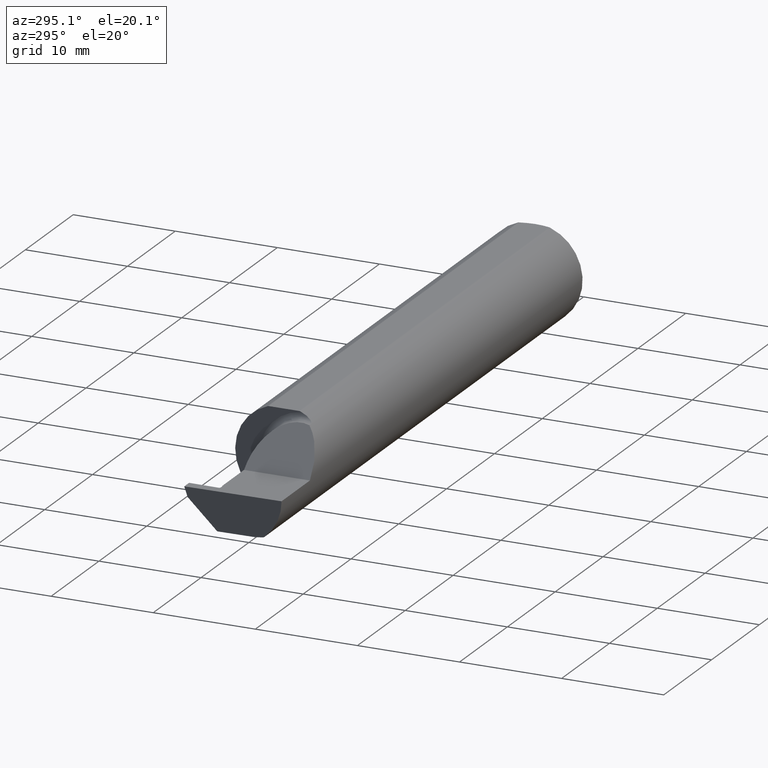
[diagram: clean part render]
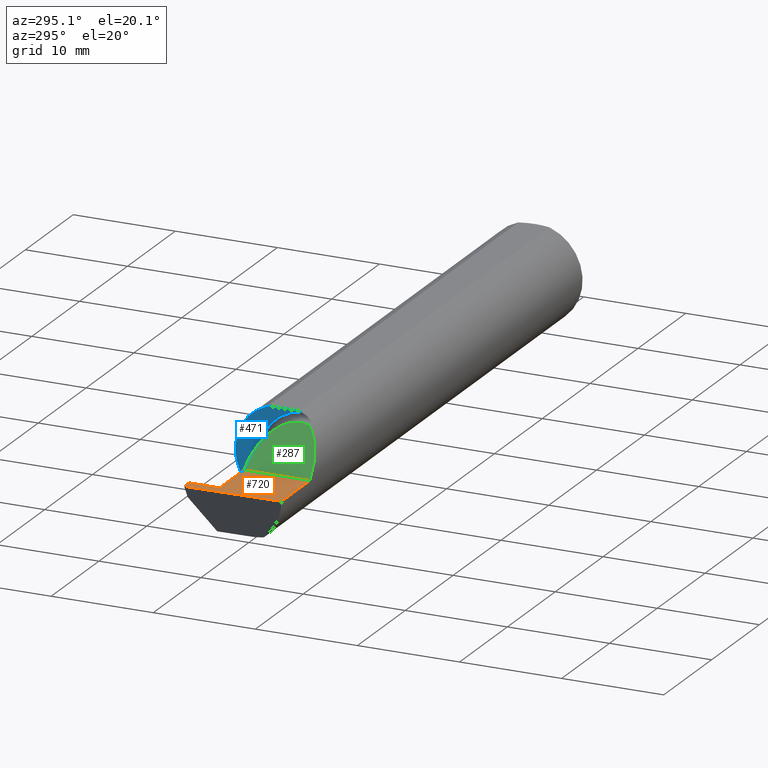
[diagram: same view with three faces highlighted in distinct colors, each labeled with its STEP entity id]
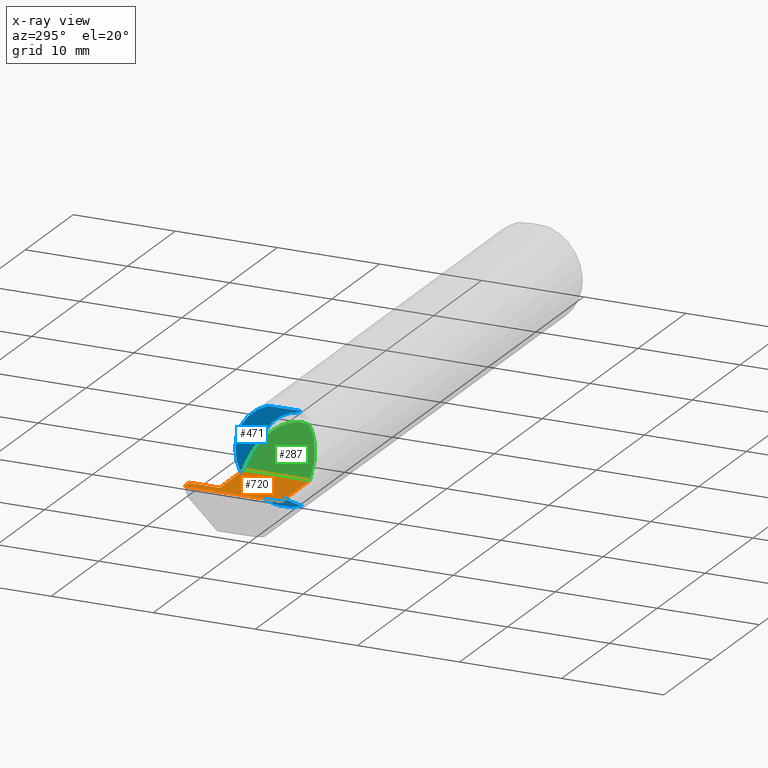
[diagram: x-ray of the same camera — body ghosted, the three highlighted faces saturated]
A machine part, auxiliary view with three faces highlighted in distinct colors.
The next image is the same camera in x-ray (body ghosted, the three faces saturated) — at least one of them is partly hidden behind the body in this view.
Their STEP definitions:

[orange] entity #720 — the highlighted planar face has unit normal (0, 0, -1).
#33 = EDGE_CURVE ( 'NONE', #254, #348, #928, .T. ) ;
#38 = DIRECTION ( 'NONE',  ( 0.01745240643727703073, -0.9998476951563912696, 0.000000000000000000 ) ) ;
#53 = CARTESIAN_POINT ( 'NONE',  ( -2.462042847893961550, 0.06761532263369834928, -4.817540195324741940E-11 ) ) ;
#69 = CARTESIAN_POINT ( 'NONE',  ( -2.459999999986550723, 0.1846500000000000363, -5.335640612625514099E-19 ) ) ;
#79 = CARTESIAN_POINT ( 'NONE',  ( -2.454971356043562647, 0.06464999999999881952, -4.269731417198365675E-11 ) ) ;
#91 = VERTEX_POINT ( 'NONE', #911 ) ;
#93 = CARTESIAN_POINT ( 'NONE',  ( -2.439999999988526902, 0.06464999999898689287, 1.642770379568972304E-10 ) ) ;
#94 = B_SPLINE_CURVE_WITH_KNOTS ( 'NONE', 1,
 ( #896, #93 ),
 .UNSPECIFIED., .F., .F.,
 ( 2, 2 ),
 ( 0.000000000000000000, 0.0003802724437979021488 ),
 .UNSPECIFIED. ) ;
#110 = CARTESIAN_POINT ( 'NONE',  ( -2.075000000000000178, 0.06665000000000001479, 5.228927800373003585E-17 ) ) ;
#142 = LINE ( 'NONE', #286, #212 ) ;
#147 = VERTEX_POINT ( 'NONE', #564 ) ;
#148 = CARTESIAN_POINT ( 'NONE',  ( -2.437999999999999279, 0.06665000000000002867, 8.537024980200822558E-18 ) ) ;
#156 =( BOUNDED_CURVE ( )  B_SPLINE_CURVE ( 3, ( #488, #53, #509, #79 ),
 .UNSPECIFIED., .F., .F. ) 
 B_SPLINE_CURVE_WITH_KNOTS ( ( 4, 4 ),
 ( 6.505213034913027567E-19, 0.0002808519284762538734 ),
 .UNSPECIFIED. ) 
 CURVE ( )  GEOMETRIC_REPRESENTATION_ITEM ( )  RATIONAL_B_SPLINE_CURVE ( ( 1.000000000000000000, 0.8006061761999030413, 0.8006061761999030413, 1.000000000000000000 ) ) 
 REPRESENTATION_ITEM ( '' )  );
#177 = EDGE_CURVE ( 'NONE', #254, #147, #697, .T. ) ;
#185 = CARTESIAN_POINT ( 'NONE',  ( -2.500000000000000000, -0.2000000000000000111, 0.000000000000000000 ) ) ;
#189 = FACE_OUTER_BOUND ( 'NONE', #622, .T. ) ;
#212 = VECTOR ( 'NONE', #711, 39.37007874015748143 ) ;
#216 = DIRECTION ( 'NONE',  ( 0.000000000000000000, 1.000000000000000000, 0.000000000000000000 ) ) ;
#230 = ORIENTED_EDGE ( 'NONE', *, *, #847, .T. ) ;
#238 = CARTESIAN_POINT ( 'NONE',  ( -2.461970289910105691, 0.07177216684492265797, -4.912318463029475700E-11 ) ) ;
#254 = VERTEX_POINT ( 'NONE', #69 ) ;
#260 = DIRECTION ( 'NONE',  ( 1.224646799147353700E-16, 0.000000000000000000, -1.000000000000000000 ) ) ;
#286 = CARTESIAN_POINT ( 'NONE',  ( 0.000000000000000000, -0.1873499999999999888, 3.062657711647045301E-16 ) ) ;
#302 = VERTEX_POINT ( 'NONE', #440 ) ;
#308 = ORIENTED_EDGE ( 'NONE', *, *, #177, .T. ) ;
#348 = VERTEX_POINT ( 'NONE', #893 ) ;
#354 = DIRECTION ( 'NONE',  ( -1.000000000000000000, 0.000000000000000000, 0.000000000000000000 ) ) ;
#367 = LINE ( 'NONE', #849, #533 ) ;
#370 = VERTEX_POINT ( 'NONE', #378 ) ;
#378 = CARTESIAN_POINT ( 'NONE',  ( -2.493506715846705468, -0.1873499999999999888, 0.000000000000000000 ) ) ;
#403 = CARTESIAN_POINT ( 'NONE',  ( -2.459999999986550723, 0.1846500000000000363, -5.335640612625514099E-19 ) ) ;
#404 = ORIENTED_EDGE ( 'NONE', *, *, #805, .T. ) ;
#412 = EDGE_CURVE ( 'NONE', #91, #827, #563, .T. ) ;
#440 = CARTESIAN_POINT ( 'NONE',  ( -2.454971356043562647, 0.06464999999999881952, -4.269731417198365675E-11 ) ) ;
#441 = ORIENTED_EDGE ( 'NONE', *, *, #638, .F. ) ;
#446 = EDGE_CURVE ( 'NONE', #147, #370, #494, .T. ) ;
#448 = B_SPLINE_CURVE_WITH_KNOTS ( 'NONE', 1,
 ( #785, #924 ),
 .UNSPECIFIED., .F., .F.,
 ( 2, 2 ),
 ( 0.000000000000000000, 7.184204878070299546E-05 ),
 .UNSPECIFIED. ) ;
#463 = CARTESIAN_POINT ( 'NONE',  ( -2.260000000000000231, -0.1873499999999999888, 2.934602336944032870E-17 ) ) ;
#488 = CARTESIAN_POINT ( 'NONE',  ( -2.461970289910105691, 0.07177216684492265797, -4.912318463029475700E-11 ) ) ;
#491 = EDGE_CURVE ( 'NONE', #746, #827, #448, .T. ) ;
#494 = LINE ( 'NONE', #689, #916 ) ;
#509 = CARTESIAN_POINT ( 'NONE',  ( -2.459128833457473018, 0.06464999999995867108, -4.734315173171690454E-11 ) ) ;
#533 = VECTOR ( 'NONE', #216, 39.37007874015748143 ) ;
#549 = PLANE ( 'NONE',  #810 ) ;
#563 = LINE ( 'NONE', #110, #676 ) ;
#564 = CARTESIAN_POINT ( 'NONE',  ( -2.500000000000000000, 0.1846500000000000363, 0.000000000000000000 ) ) ;
#565 = ORIENTED_EDGE ( 'NONE', *, *, #412, .T. ) ;
#567 = DIRECTION ( 'NONE',  ( -1.000000000000000000, 4.493171042210958884E-17, 0.000000000000000000 ) ) ;
#611 = VERTEX_POINT ( 'NONE', #463 ) ;
#622 = EDGE_LOOP ( 'NONE', ( #404, #230, #565, #806, #441, #665, #912, #308, #698 ) ) ;
#638 = EDGE_CURVE ( 'NONE', #302, #746, #94, .T. ) ;
#665 = ORIENTED_EDGE ( 'NONE', *, *, #777, .F. ) ;
#676 = VECTOR ( 'NONE', #567, 39.37007874015748143 ) ;
#689 = CARTESIAN_POINT ( 'NONE',  ( -2.500000000000000000, 0.1846500000000000363, 0.000000000000000000 ) ) ;
#697 = LINE ( 'NONE', #917, #736 ) ;
#698 = ORIENTED_EDGE ( 'NONE', *, *, #446, .T. ) ;
#711 = DIRECTION ( 'NONE',  ( 1.000000000000000000, -0.000000000000000000, -0.000000000000000000 ) ) ;
#720 = ADVANCED_FACE ( 'NONE', ( #189 ), #549, .F. ) ;
#736 = VECTOR ( 'NONE', #354, 39.37007874015748143 ) ;
#746 = VERTEX_POINT ( 'NONE', #759 ) ;
#759 = CARTESIAN_POINT ( 'NONE',  ( -2.439999999988526902, 0.06464999999898689287, 1.642770379568972304E-10 ) ) ;
#777 = EDGE_CURVE ( 'NONE', #348, #302, #156, .T. ) ;
#785 = CARTESIAN_POINT ( 'NONE',  ( -2.439999999988526902, 0.06464999999898689287, 1.642770379568972304E-10 ) ) ;
#805 = EDGE_CURVE ( 'NONE', #370, #611, #142, .T. ) ;
#806 = ORIENTED_EDGE ( 'NONE', *, *, #491, .F. ) ;
#810 = AXIS2_PLACEMENT_3D ( 'NONE', #185, #260, #913 ) ;
#827 = VERTEX_POINT ( 'NONE', #148 ) ;
#847 = EDGE_CURVE ( 'NONE', #611, #91, #367, .T. ) ;
#849 = CARTESIAN_POINT ( 'NONE',  ( -2.260000000000000231, -0.2000000000000000111, 2.934602336944032870E-17 ) ) ;
#893 = CARTESIAN_POINT ( 'NONE',  ( -2.461970289910105691, 0.07177216684492265797, -4.912318463029475700E-11 ) ) ;
#896 = CARTESIAN_POINT ( 'NONE',  ( -2.454971356043562647, 0.06464999999999881952, -4.269731417198365675E-11 ) ) ;
#911 = CARTESIAN_POINT ( 'NONE',  ( -2.260000000000000231, 0.06664999999999998703, 2.934602336944032870E-17 ) ) ;
#912 = ORIENTED_EDGE ( 'NONE', *, *, #33, .F. ) ;
#913 = DIRECTION ( 'NONE',  ( 1.000000000000000000, 0.000000000000000000, 1.224646799147353700E-16 ) ) ;
#916 = VECTOR ( 'NONE', #38, 39.37007874015748143 ) ;
#917 = CARTESIAN_POINT ( 'NONE',  ( -2.399999999999999911, 0.1846500000000000363, -5.335640612625514099E-19 ) ) ;
#924 = CARTESIAN_POINT ( 'NONE',  ( -2.437999999999999279, 0.06665000000000002867, 8.537024980200822558E-18 ) ) ;
#928 = B_SPLINE_CURVE_WITH_KNOTS ( 'NONE', 1,
 ( #403, #238 ),
 .UNSPECIFIED., .F., .F.,
 ( 2, 2 ),
 ( 6.219974576484725306E-15, 0.002867533701424602663 ),
 .UNSPECIFIED. ) ;

[blue] entity #471 — the highlighted planar face has unit normal (-1, 0, 0).
#16 = ORIENTED_EDGE ( 'NONE', *, *, #761, .F. ) ;
#54 = CARTESIAN_POINT ( 'NONE',  ( -2.075000000000000178, 0.06039039658754216666, 0.1773499999999999799 ) ) ;
#59 = VECTOR ( 'NONE', #780, 39.37007874015748143 ) ;
#73 = AXIS2_PLACEMENT_3D ( 'NONE', #724, #77, #369 ) ;
#77 = DIRECTION ( 'NONE',  ( 1.000000000000000000, -4.493171042210958884E-17, -0.000000000000000000 ) ) ;
#113 = CARTESIAN_POINT ( 'NONE',  ( -2.075000000000000178, -0.06851976604679065053, 0.1743704796142198643 ) ) ;
#120 = DIRECTION ( 'NONE',  ( -1.000000000000000000, 4.493171042210958884E-17, 0.000000000000000000 ) ) ;
#161 = CARTESIAN_POINT ( 'NONE',  ( -2.075000000000000178, 0.000000000000000000, 0.000000000000000000 ) ) ;
#188 = ORIENTED_EDGE ( 'NONE', *, *, #351, .F. ) ;
#196 = CARTESIAN_POINT ( 'NONE',  ( -2.075000000000000178, -0.06039039658753699025, 0.1773499999999999799 ) ) ;
#200 = PLANE ( 'NONE',  #647 ) ;
#239 = AXIS2_PLACEMENT_3D ( 'NONE', #553, #765, #699 ) ;
#307 = EDGE_CURVE ( 'NONE', #408, #758, #546, .T. ) ;
#351 = EDGE_CURVE ( 'NONE', #725, #375, #885, .T. ) ;
#369 = DIRECTION ( 'NONE',  ( 0.000000000000000000, 1.000000000000000000, 0.000000000000000000 ) ) ;
#375 = VERTEX_POINT ( 'NONE', #54 ) ;
#408 = VERTEX_POINT ( 'NONE', #196 ) ;
#471 = ADVANCED_FACE ( 'NONE', ( #484 ), #200, .T. ) ;
#479 = CARTESIAN_POINT ( 'NONE',  ( -2.075000000000000178, -0.06851976604679065053, -0.1743704796142198643 ) ) ;
#480 = DIRECTION ( 'NONE',  ( 4.493171042210958884E-17, 1.000000000000000000, 0.000000000000000000 ) ) ;
#484 = FACE_OUTER_BOUND ( 'NONE', #683, .T. ) ;
#503 = EDGE_CURVE ( 'NONE', #408, #375, #728, .T. ) ;
#507 = CARTESIAN_POINT ( 'NONE',  ( -2.075000000000000178, -0.1873500000000000443, 0.1773499999999999799 ) ) ;
#546 = CIRCLE ( 'NONE', #73, 0.1873499999999999888 ) ;
#553 = CARTESIAN_POINT ( 'NONE',  ( -2.075000000000000178, -0.08334999999999996578, 0.000000000000000000 ) ) ;
#620 = CIRCLE ( 'NONE', #239, 0.1749999999999999889 ) ;
#647 = AXIS2_PLACEMENT_3D ( 'NONE', #766, #120, #480 ) ;
#677 = DIRECTION ( 'NONE',  ( 1.000000000000000000, -4.493171042210958884E-17, -0.000000000000000000 ) ) ;
#683 = EDGE_LOOP ( 'NONE', ( #188, #16, #848, #833 ) ) ;
#699 = DIRECTION ( 'NONE',  ( 0.000000000000000000, -1.000000000000000000, 0.000000000000000000 ) ) ;
#724 = CARTESIAN_POINT ( 'NONE',  ( -2.075000000000000178, 0.000000000000000000, 0.000000000000000000 ) ) ;
#725 = VERTEX_POINT ( 'NONE', #479 ) ;
#728 = LINE ( 'NONE', #507, #59 ) ;
#758 = VERTEX_POINT ( 'NONE', #113 ) ;
#761 = EDGE_CURVE ( 'NONE', #758, #725, #620, .T. ) ;
#765 = DIRECTION ( 'NONE',  ( -1.000000000000000000, 4.493171042210958884E-17, 0.000000000000000000 ) ) ;
#766 = CARTESIAN_POINT ( 'NONE',  ( -2.075000000000000178, 0.2666500000000000536, 0.000000000000000000 ) ) ;
#780 = DIRECTION ( 'NONE',  ( 4.493171042210958884E-17, 1.000000000000000000, 0.000000000000000000 ) ) ;
#796 = AXIS2_PLACEMENT_3D ( 'NONE', #161, #677, #826 ) ;
#826 = DIRECTION ( 'NONE',  ( 0.000000000000000000, 1.000000000000000000, 0.000000000000000000 ) ) ;
#833 = ORIENTED_EDGE ( 'NONE', *, *, #503, .T. ) ;
#848 = ORIENTED_EDGE ( 'NONE', *, *, #307, .F. ) ;
#885 = CIRCLE ( 'NONE', #796, 0.1873499999999999888 ) ;

[green] entity #287 — the highlighted planar face has unit normal (0.7071, 0, -0.7071).
#65 = EDGE_CURVE ( 'NONE', #909, #91, #613, .T. ) ;
#91 = VERTEX_POINT ( 'NONE', #911 ) ;
#130 = CARTESIAN_POINT ( 'NONE',  ( -2.113883229301070532, -0.1172600179964006645, 0.1461167706989302539 ) ) ;
#136 = EDGE_CURVE ( 'NONE', #611, #909, #708, .T. ) ;
#168 = CARTESIAN_POINT ( 'NONE',  ( -2.113883229301070532, -0.1172600179964006645, 0.1461167706989302539 ) ) ;
#214 = CARTESIAN_POINT ( 'NONE',  ( -2.260000000000000231, -0.2000000000000000111, 2.934602336944032870E-17 ) ) ;
#216 = DIRECTION ( 'NONE',  ( 0.000000000000000000, 1.000000000000000000, 0.000000000000000000 ) ) ;
#287 = ADVANCED_FACE ( 'NONE', ( #854 ), #365, .F. ) ;
#317 = AXIS2_PLACEMENT_3D ( 'NONE', #214, #652, #591 ) ;
#365 = PLANE ( 'NONE',  #317 ) ;
#367 = LINE ( 'NONE', #849, #533 ) ;
#442 = CARTESIAN_POINT ( 'NONE',  ( -2.113883229301070532, -0.1172600179964006645, 0.1461167706989302539 ) ) ;
#454 = ORIENTED_EDGE ( 'NONE', *, *, #65, .T. ) ;
#461 = CARTESIAN_POINT ( 'NONE',  ( -2.260000000000000231, 0.06664999999999998703, 2.934602336944032870E-17 ) ) ;
#463 = CARTESIAN_POINT ( 'NONE',  ( -2.260000000000000231, -0.1873499999999999888, 2.934602336944032870E-17 ) ) ;
#522 = EDGE_LOOP ( 'NONE', ( #454, #905, #918 ) ) ;
#533 = VECTOR ( 'NONE', #216, 39.37007874015748143 ) ;
#542 = CARTESIAN_POINT ( 'NONE',  ( -2.090221225029928576, -0.01530148607434166606, 0.1697787749700726267 ) ) ;
#591 = DIRECTION ( 'NONE',  ( 0.7071067811865454633, 0.000000000000000000, 0.7071067811865496822 ) ) ;
#611 = VERTEX_POINT ( 'NONE', #463 ) ;
#613 =( BOUNDED_CURVE ( )  B_SPLINE_CURVE ( 3, ( #168, #542, #821, #461 ),
 .UNSPECIFIED., .F., .F. ) 
 B_SPLINE_CURVE_WITH_KNOTS ( ( 4, 4 ),
 ( 6.055147272130142255, 7.853981633974482790 ),
 .UNSPECIFIED. ) 
 CURVE ( )  GEOMETRIC_REPRESENTATION_ITEM ( )  RATIONAL_B_SPLINE_CURVE ( ( 1.000000000000000000, 0.7480442670255268434, 0.7480442670255268434, 1.000000000000000000 ) ) 
 REPRESENTATION_ITEM ( '' )  );
#629 = CARTESIAN_POINT ( 'NONE',  ( -2.202189699843949633, -0.1873500000000000998, 0.05781030015605104211 ) ) ;
#652 = DIRECTION ( 'NONE',  ( 0.7071067811865496822, 0.000000000000000000, -0.7071067811865454633 ) ) ;
#708 =( BOUNDED_CURVE ( )  B_SPLINE_CURVE ( 3, ( #832, #629, #846, #130 ),
 .UNSPECIFIED., .F., .F. ) 
 B_SPLINE_CURVE_WITH_KNOTS ( ( 4, 4 ),
 ( 4.712388980384688786, 5.606916381293136631 ),
 .UNSPECIFIED. ) 
 CURVE ( )  GEOMETRIC_REPRESENTATION_ITEM ( )  RATIONAL_B_SPLINE_CURVE ( ( 1.000000000000000000, 0.9344226172588802060, 0.9344226172588802060, 1.000000000000000000 ) ) 
 REPRESENTATION_ITEM ( '' )  );
#821 = CARTESIAN_POINT ( 'NONE',  ( -2.155331797197864940, 0.06664999999999998703, 0.1046682028021360678 ) ) ;
#832 = CARTESIAN_POINT ( 'NONE',  ( -2.260000000000000231, -0.1873499999999999888, 2.934602336944032870E-17 ) ) ;
#846 = CARTESIAN_POINT ( 'NONE',  ( -2.150065971957467070, -0.1623470442677541759, 0.1099340280425336880 ) ) ;
#847 = EDGE_CURVE ( 'NONE', #611, #91, #367, .T. ) ;
#849 = CARTESIAN_POINT ( 'NONE',  ( -2.260000000000000231, -0.2000000000000000111, 2.934602336944032870E-17 ) ) ;
#854 = FACE_OUTER_BOUND ( 'NONE', #522, .T. ) ;
#905 = ORIENTED_EDGE ( 'NONE', *, *, #847, .F. ) ;
#909 = VERTEX_POINT ( 'NONE', #442 ) ;
#911 = CARTESIAN_POINT ( 'NONE',  ( -2.260000000000000231, 0.06664999999999998703, 2.934602336944032870E-17 ) ) ;
#918 = ORIENTED_EDGE ( 'NONE', *, *, #136, .T. ) ;